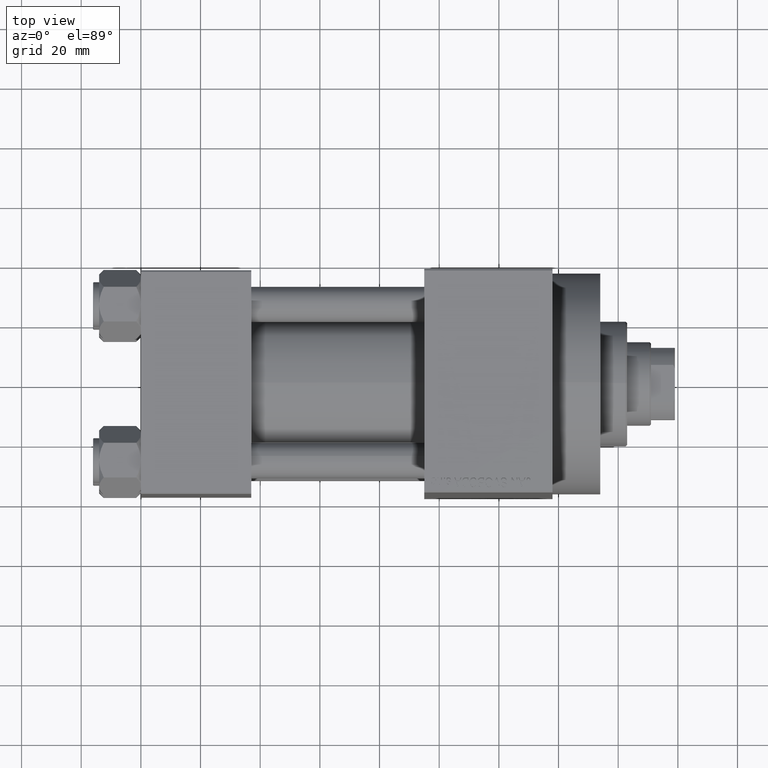
[diagram: clean part render]
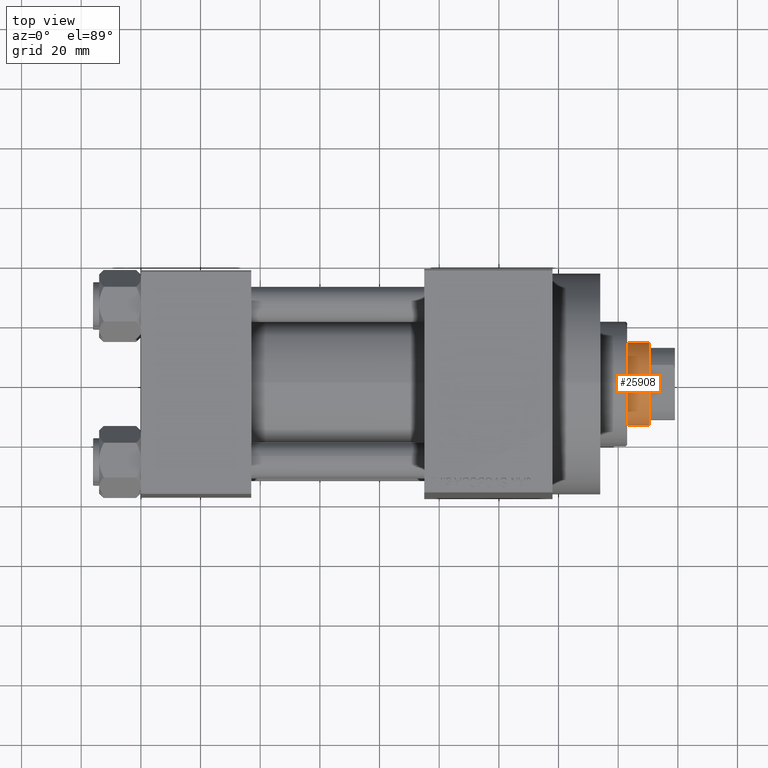
[diagram: same view with one face highlighted and labeled with its STEP entity id]
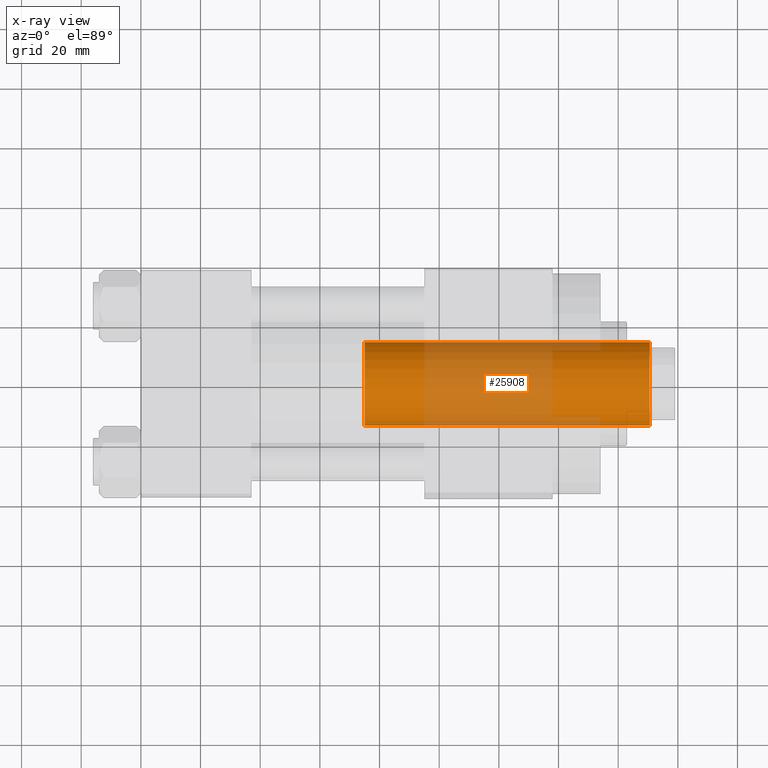
[diagram: x-ray of the same camera — body ghosted, the highlighted face saturated]
A machine part, top view. The second image highlights one B-rep face of the part: STEP entity #25908.
The next image is the same camera in x-ray: the body ghosted, the highlighted face saturated — about 48% of this face is hidden behind the body in this view.
In plain terms, the highlighted cylindrical surface (partial cylindrical patch) has radius 14 mm, axis along (-1, 0, 0).
Its self-contained STEP definition (entity closure, byte-faithful):
#176 = DIRECTION ( 'NONE',  ( 1.000000000000000000, 0.000000000000000000, 0.000000000000000000 ) ) ;
#722 = LINE ( 'NONE', #40347, #2850 ) ;
#2722 = CARTESIAN_POINT ( 'NONE',  ( -14.00000000000000178, 0.000000000000000000, 38.00000000000000000 ) ) ;
#2809 = CARTESIAN_POINT ( 'NONE',  ( -14.00000000000000178, 0.000000000000000000, 134.0000000000000000 ) ) ;
#2850 = VECTOR ( 'NONE', #15050, 1000.000000000000000 ) ;
#3037 = DIRECTION ( 'NONE',  ( -0.000000000000000000, -0.000000000000000000, -1.000000000000000000 ) ) ;
#9704 = DIRECTION ( 'NONE',  ( -1.000000000000000000, 0.000000000000000000, 0.000000000000000000 ) ) ;
#10982 = DIRECTION ( 'NONE',  ( 0.000000000000000000, 0.000000000000000000, 1.000000000000000000 ) ) ;
#11098 = EDGE_CURVE ( 'NONE', #32110, #45554, #35753, .T. ) ;
#11145 = CARTESIAN_POINT ( 'NONE',  ( 0.000000000000000000, 0.000000000000000000, 133.5000000000000284 ) ) ;
#11206 = CARTESIAN_POINT ( 'NONE',  ( 14.00000000000000178, 1.714505518806294835E-15, 133.5000000000000284 ) ) ;
#12125 = EDGE_CURVE ( 'NONE', #32661, #24165, #722, .T. ) ;
#12352 = CARTESIAN_POINT ( 'NONE',  ( 0.000000000000000000, 0.000000000000000000, 134.0000000000000000 ) ) ;
#15050 = DIRECTION ( 'NONE',  ( -0.000000000000000000, -0.000000000000000000, -1.000000000000000000 ) ) ;
#15610 = ORIENTED_EDGE ( 'NONE', *, *, #11098, .T. ) ;
#16447 = ORIENTED_EDGE ( 'NONE', *, *, #24406, .T. ) ;
#17085 = CIRCLE ( 'NONE', #43757, 14.00000000000000178 ) ;
#17641 = AXIS2_PLACEMENT_3D ( 'NONE', #29149, #10982, #24621 ) ;
#17743 = CARTESIAN_POINT ( 'NONE',  ( 14.00000000000000178, 1.714505518806294835E-15, 38.00000000000000000 ) ) ;
#18845 = ORIENTED_EDGE ( 'NONE', *, *, #28410, .T. ) ;
#19168 = CIRCLE ( 'NONE', #17641, 14.00000000000000178 ) ;
#24165 = VERTEX_POINT ( 'NONE', #17743 ) ;
#24406 = EDGE_CURVE ( 'NONE', #45554, #24165, #19168, .T. ) ;
#24621 = DIRECTION ( 'NONE',  ( 1.000000000000000000, 0.000000000000000000, 0.000000000000000000 ) ) ;
#25908 = ADVANCED_FACE ( 'NONE', ( #45067 ), #38823, .T. ) ;
#28410 = EDGE_CURVE ( 'NONE', #32661, #32110, #17085, .T. ) ;
#28737 = VECTOR ( 'NONE', #3037, 1000.000000000000000 ) ;
#28841 = DIRECTION ( 'NONE',  ( 0.000000000000000000, 0.000000000000000000, -1.000000000000000000 ) ) ;
#29149 = CARTESIAN_POINT ( 'NONE',  ( 0.000000000000000000, 0.000000000000000000, 38.00000000000000000 ) ) ;
#32110 = VERTEX_POINT ( 'NONE', #41204 ) ;
#32661 = VERTEX_POINT ( 'NONE', #11206 ) ;
#32867 = ORIENTED_EDGE ( 'NONE', *, *, #12125, .F. ) ;
#35753 = LINE ( 'NONE', #2809, #28737 ) ;
#36002 = EDGE_LOOP ( 'NONE', ( #32867, #18845, #15610, #16447 ) ) ;
#38351 = DIRECTION ( 'NONE',  ( -0.000000000000000000, -0.000000000000000000, -1.000000000000000000 ) ) ;
#38823 = CYLINDRICAL_SURFACE ( 'NONE', #45905, 14.00000000000000178 ) ;
#40347 = CARTESIAN_POINT ( 'NONE',  ( 14.00000000000000178, 1.714505518806294835E-15, 134.0000000000000000 ) ) ;
#41204 = CARTESIAN_POINT ( 'NONE',  ( -14.00000000000000178, 0.000000000000000000, 133.5000000000000284 ) ) ;
#43757 = AXIS2_PLACEMENT_3D ( 'NONE', #11145, #28841, #176 ) ;
#45067 = FACE_OUTER_BOUND ( 'NONE', #36002, .T. ) ;
#45554 = VERTEX_POINT ( 'NONE', #2722 ) ;
#45905 = AXIS2_PLACEMENT_3D ( 'NONE', #12352, #38351, #9704 ) ;